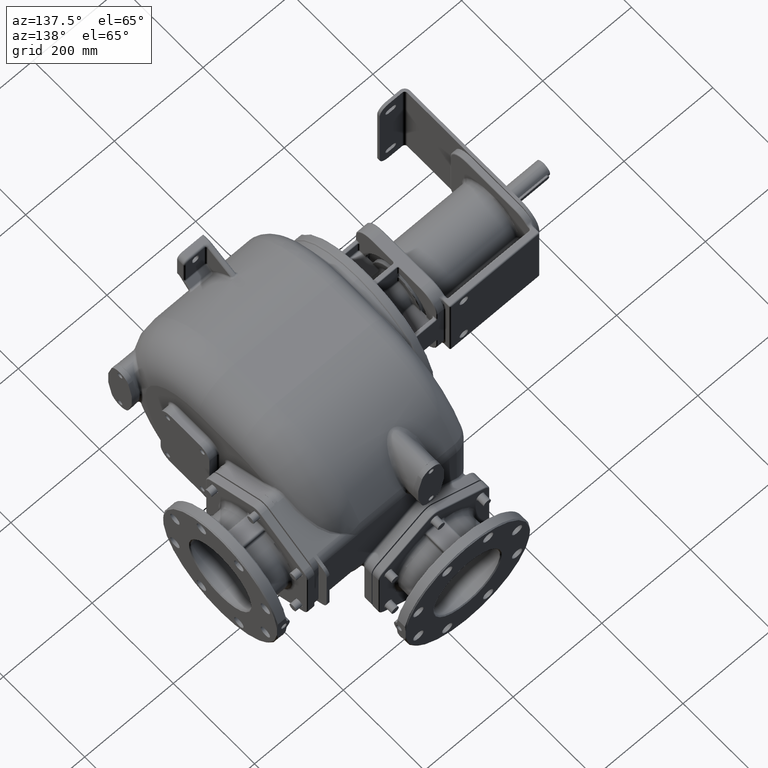
[diagram: clean part render]
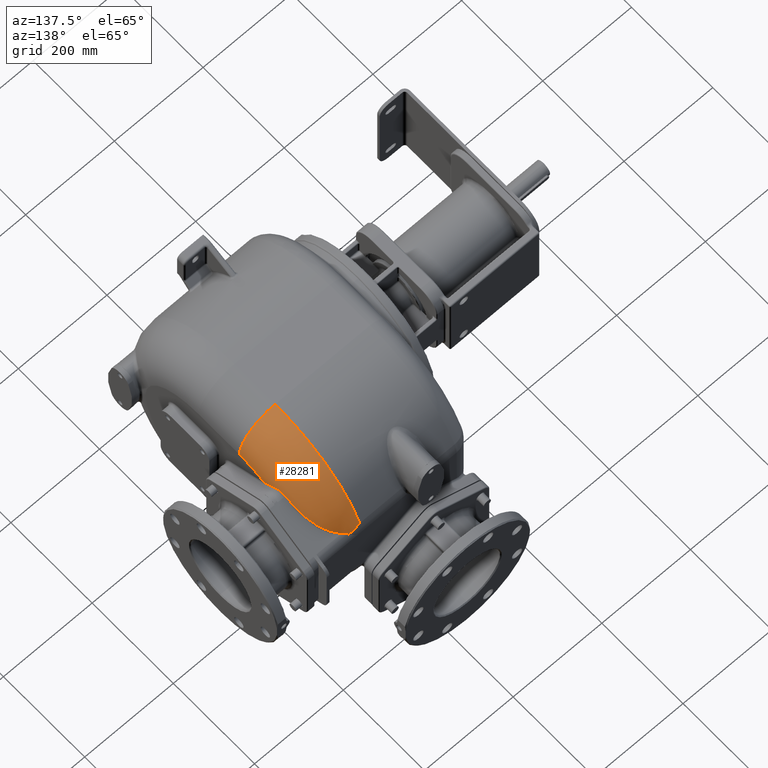
[diagram: same view with one face highlighted and labeled with its STEP entity id]
A machine part, auxiliary view. The second image highlights one B-rep face of the part: STEP entity #28281.
In plain terms, the highlighted toroidal blend (fillet) surface has major radius 144 mm and minor (blend) radius 81 mm.
Its self-contained STEP definition (entity closure, byte-faithful):
#2461=CARTESIAN_POINT('',(1.75E2,3.17E2,-2.6E1));
#2462=DIRECTION('',(1.E0,0.E0,0.E0));
#2463=DIRECTION('',(0.E0,4.233478865562E-1,9.059671997089E-1));
#2464=AXIS2_PLACEMENT_3D('',#2461,#2462,#2463);
#3040=CARTESIAN_POINT('',(1.733602443618E2,3.951095980304E2,1.138856239345E2));
#3041=CARTESIAN_POINT('',(1.734661831703E2,3.945748210790E2,1.135904168496E2));
#3042=CARTESIAN_POINT('',(1.736684373138E2,3.934981751461E2,1.129963078726E2));
#3043=CARTESIAN_POINT('',(1.739421932198E2,3.918631475769E2,1.120947629351E2));
#3044=CARTESIAN_POINT('',(1.741859853625E2,3.902069024249E2,1.111822324884E2));
#3045=CARTESIAN_POINT('',(1.743992934731E2,3.885289490650E2,1.102584862345E2));
#3046=CARTESIAN_POINT('',(1.745815907162E2,3.868285633995E2,1.093231680484E2));
#3047=CARTESIAN_POINT('',(1.747322930105E2,3.851050428096E2,1.083759320387E2));
#3048=CARTESIAN_POINT('',(1.748507681541E2,3.833577111877E2,1.074164505472E2));
#3049=CARTESIAN_POINT('',(1.749363377425E2,3.815858736748E2,1.064443904438E2));
#3050=CARTESIAN_POINT('',(1.749882841836E2,3.797890831383E2,1.054595521580E2));
#3051=CARTESIAN_POINT('',(1.749999999614E2,3.785738109838E2,1.047940818377E2));
#3052=CARTESIAN_POINT('',(1.75E2,3.779620956640E2,1.044592767582E2));
#3054=CARTESIAN_POINT('',(9.4E1,5.250322073841E2,5.971814680035E1));
#3055=CARTESIAN_POINT('',(9.451538624218E1,5.251048634583E2,5.954179212118E1));
#3056=CARTESIAN_POINT('',(9.554646692356E1,5.252401754354E2,5.918632790116E1));
#3057=CARTESIAN_POINT('',(9.709182938497E1,5.254147461811E2,5.864074179071E1));
#3058=CARTESIAN_POINT('',(9.863597298219E1,5.255599646151E2,5.808526365770E1));
#3059=CARTESIAN_POINT('',(1.001779446747E2,5.256759942519E2,5.751965589582E1));
#3060=CARTESIAN_POINT('',(1.017171040288E2,5.257627269187E2,5.694442303393E1));
#3061=CARTESIAN_POINT('',(1.032525532321E2,5.258201765968E2,5.635987863800E1));
#3062=CARTESIAN_POINT('',(1.047830884059E2,5.258481819746E2,5.576700859384E1));
#3063=CARTESIAN_POINT('',(1.063075976812E2,5.258466444557E2,5.516680749646E1));
#3064=CARTESIAN_POINT('',(1.078258321734E2,5.258155406206E2,5.455983848298E1));
#3065=CARTESIAN_POINT('',(1.093376667183E2,5.257546956298E2,5.394694761771E1));
#3066=CARTESIAN_POINT('',(1.108423900968E2,5.256645611190E2,5.332766935970E1));
#3067=CARTESIAN_POINT('',(1.123396533526E2,5.255450973468E2,5.270258337734E1));
#3068=CARTESIAN_POINT('',(1.138290756521E2,5.253964296493E2,5.207213301583E1));
#3069=CARTESIAN_POINT('',(1.148168093524E2,5.252773112861E2,5.164931850497E1));
#3070=CARTESIAN_POINT('',(1.153092020854E2,5.252130023591E2,5.143707029860E1));
#3072=CARTESIAN_POINT('',(1.153092020854E2,5.252130023591E2,5.143707029860E1));
#3073=CARTESIAN_POINT('',(1.155752783039E2,5.251784614331E2,5.132191762786E1));
#3074=CARTESIAN_POINT('',(1.161045555584E2,5.251119110537E2,5.107849512312E1));
#3075=CARTESIAN_POINT('',(1.169050818362E2,5.249989935738E2,5.071528949109E1));
#3076=CARTESIAN_POINT('',(1.174385900906E2,5.249224782409E2,5.046131345931E1));
#3077=CARTESIAN_POINT('',(1.177053320788E2,5.248829311947E2,5.033237396614E1));
#3079=CARTESIAN_POINT('',(1.177053320788E2,5.248829311947E2,5.033237396614E1));
#3080=CARTESIAN_POINT('',(1.178732428866E2,5.247701163780E2,5.049051828112E1));
#3081=CARTESIAN_POINT('',(1.182242647067E2,5.245340196570E2,5.081454391319E1));
#3082=CARTESIAN_POINT('',(1.188023792175E2,5.241517501924E2,5.131760275101E1));
#3083=CARTESIAN_POINT('',(1.194318696018E2,5.237376531075E2,5.183759997580E1));
#3084=CARTESIAN_POINT('',(1.201149873190E2,5.232904908056E2,5.237245649807E1));
#3085=CARTESIAN_POINT('',(1.208524276767E2,5.228083115169E2,5.292090300096E1));
#3086=CARTESIAN_POINT('',(1.216452966631E2,5.222885914027E2,5.348267916300E1));
#3087=CARTESIAN_POINT('',(1.224909363805E2,5.217318213825E2,5.405281802069E1));
#3088=CARTESIAN_POINT('',(1.233830614639E2,5.211405956276E2,5.462497541390E1));
#3089=CARTESIAN_POINT('',(1.243154492884E2,5.205171210455E2,5.519441922427E1));
#3090=CARTESIAN_POINT('',(1.252812730714E2,5.198642360895E2,5.575630071473E1));
#3091=CARTESIAN_POINT('',(1.262760303137E2,5.191835858426E2,5.630701805651E1));
#3092=CARTESIAN_POINT('',(1.272955026788E2,5.184764686424E2,5.684404852444E1));
#3093=CARTESIAN_POINT('',(1.283351678255E2,5.177445796058E2,5.736488305970E1));
#3094=CARTESIAN_POINT('',(1.293912278218E2,5.169895195831E2,5.786696777144E1));
#3095=CARTESIAN_POINT('',(1.301023125656E2,5.164727864102E2,5.818726775048E1));
#3096=CARTESIAN_POINT('',(1.304597870853E2,5.162107940024E2,5.834389739409E1));
#3098=CARTESIAN_POINT('',(1.304597870853E2,5.162107940024E2,5.834389739409E1));
#3099=CARTESIAN_POINT('',(1.308283016295E2,5.159407059331E2,5.850536894922E1));
#3100=CARTESIAN_POINT('',(1.315642150403E2,5.153897724783E2,5.883475393211E1));
#3101=CARTESIAN_POINT('',(1.326637954900E2,5.145308861720E2,5.934825887950E1));
#3102=CARTESIAN_POINT('',(1.337587047405E2,5.136388807813E2,5.988155997731E1));
#3103=CARTESIAN_POINT('',(1.348483507133E2,5.127132555355E2,6.043495360784E1));
#3104=CARTESIAN_POINT('',(1.359321136266E2,5.117535199364E2,6.100874713436E1));
#3105=CARTESIAN_POINT('',(1.370094035195E2,5.107591494175E2,6.160326181807E1));
#3106=CARTESIAN_POINT('',(1.380796102414E2,5.097296427202E2,6.221878651551E1));
#3107=CARTESIAN_POINT('',(1.391426003592E2,5.086639981555E2,6.285591373867E1));
#3108=CARTESIAN_POINT('',(1.401982303652E2,5.075611236736E2,6.351529078704E1));
#3109=CARTESIAN_POINT('',(1.412462426984E2,5.064199476161E2,6.419755747338E1));
#3110=CARTESIAN_POINT('',(1.422863009285E2,5.052393988300E2,6.490334896912E1));
#3111=CARTESIAN_POINT('',(1.433179951672E2,5.040184047299E2,6.563329778393E1));
#3112=CARTESIAN_POINT('',(1.443408054838E2,5.027559531410E2,6.638799922744E1));
#3113=CARTESIAN_POINT('',(1.453545749741E2,5.014504803340E2,6.716837743280E1));
#3114=CARTESIAN_POINT('',(1.463590748438E2,5.001003592636E2,6.797539851184E1));
#3115=CARTESIAN_POINT('',(1.473540490077E2,4.987037873631E2,6.881013399717E1));
#3116=CARTESIAN_POINT('',(1.483365131420E2,4.972628667686E2,6.967131182164E1));
#3117=CARTESIAN_POINT('',(1.493036864590E2,4.957799645637E2,7.055749649184E1));
#3118=CARTESIAN_POINT('',(1.502529668378E2,4.942577065835E2,7.146708821720E1));
#3119=CARTESIAN_POINT('',(1.511818290068E2,4.926991663502E2,7.239823707930E1));
#3120=CARTESIAN_POINT('',(1.520879641075E2,4.911076757198E2,7.334894545888E1));
#3121=CARTESIAN_POINT('',(1.529697986159E2,4.894859261166E2,7.431758236330E1));
#3122=CARTESIAN_POINT('',(1.538280086349E2,4.878326851423E2,7.530485235943E1));
#3123=CARTESIAN_POINT('',(1.546629663818E2,4.861470616171E2,7.631123954906E1));
#3124=CARTESIAN_POINT('',(1.554748857430E2,4.844283106935E2,7.733717451816E1));
#3125=CARTESIAN_POINT('',(1.562634478545E2,4.826767780292E2,7.838243176601E1));
#3126=CARTESIAN_POINT('',(1.570284330664E2,4.808927120722E2,7.944682582862E1));
#3127=CARTESIAN_POINT('',(1.577697196762E2,4.790762176633E2,8.053023700155E1));
#3128=CARTESIAN_POINT('',(1.584873114316E2,4.772271169805E2,8.163271969177E1));
#3129=CARTESIAN_POINT('',(1.591812087082E2,4.753452009967E2,8.275437783511E1));
#3130=CARTESIAN_POINT('',(1.598513818561E2,4.734303803088E2,8.389521738088E1));
#3131=CARTESIAN_POINT('',(1.604977402127E2,4.714828202634E2,8.505506870540E1));
#3132=CARTESIAN_POINT('',(1.611202399770E2,4.695026220335E2,8.623380760554E1));
#3133=CARTESIAN_POINT('',(1.617188549622E2,4.674898717983E2,8.743134486178E1));
#3134=CARTESIAN_POINT('',(1.622935845406E2,4.654446932035E2,8.864753899424E1));
#3135=CARTESIAN_POINT('',(1.628444703469E2,4.633671804494E2,8.988224069540E1));
#3136=CARTESIAN_POINT('',(1.633715407120E2,4.612575112062E2,9.113528902173E1));
#3137=CARTESIAN_POINT('',(1.638748267371E2,4.591159958229E2,9.240643035445E1));
#3138=CARTESIAN_POINT('',(1.643544169358E2,4.569428933714E2,9.369540500654E1));
#3139=CARTESIAN_POINT('',(1.648103982405E2,4.547385455524E2,9.500193422612E1));
#3140=CARTESIAN_POINT('',(1.652428616013E2,4.525034276136E2,9.632566407635E1));
#3141=CARTESIAN_POINT('',(1.656519607571E2,4.502379294158E2,9.766624952839E1));
#3142=CARTESIAN_POINT('',(1.660378325322E2,4.479426663226E2,9.902322181088E1));
#3143=CARTESIAN_POINT('',(1.664006006541E2,4.456184746860E2,1.003960178415E2));
#3144=CARTESIAN_POINT('',(1.667404520389E2,4.432660929188E2,1.017840958972E2));
#3145=CARTESIAN_POINT('',(1.670575861691E2,4.408864462363E2,1.031867699467E2));
#3146=CARTESIAN_POINT('',(1.673521977991E2,4.384805423841E2,1.046033736834E2));
#3147=CARTESIAN_POINT('',(1.676245209994E2,4.360492764943E2,1.060332944390E2));
#3148=CARTESIAN_POINT('',(1.678747738084E2,4.335939467282E2,1.074756478331E2));
#3149=CARTESIAN_POINT('',(1.681031900672E2,4.311159727285E2,1.089294596846E2));
#3150=CARTESIAN_POINT('',(1.683099850036E2,4.286168274508E2,1.103938208181E2));
#3151=CARTESIAN_POINT('',(1.684954132525E2,4.260976355291E2,1.118679917646E2));
#3152=CARTESIAN_POINT('',(1.686049109876E2,4.244063694867E2,1.128563286E2));
#3153=CARTESIAN_POINT('',(1.686562078377E2,4.235573989122E2,1.133520893372E2));
#3155=CARTESIAN_POINT('',(1.686562078377E2,4.235573989122E2,1.133520893372E2));
#3156=CARTESIAN_POINT('',(1.686693154460E2,4.233404954678E2,1.134787426270E2));
#3157=CARTESIAN_POINT('',(1.686977436262E2,4.229031694896E2,1.137266584392E2));
#3158=CARTESIAN_POINT('',(1.687469383326E2,4.222366573934E2,1.140823387935E2));
#3159=CARTESIAN_POINT('',(1.688025731416E2,4.215602514598E2,1.144214513580E2));
#3160=CARTESIAN_POINT('',(1.688645379702E2,4.208744179909E2,1.147437023769E2));
#3161=CARTESIAN_POINT('',(1.689327175452E2,4.201796649217E2,1.150487612707E2));
#3162=CARTESIAN_POINT('',(1.690069938511E2,4.194764900510E2,1.153362884864E2));
#3163=CARTESIAN_POINT('',(1.690872435267E2,4.187653931923E2,1.156059350608E2));
#3164=CARTESIAN_POINT('',(1.691733448638E2,4.180468897177E2,1.158573108856E2));
#3165=CARTESIAN_POINT('',(1.692651287887E2,4.173214285010E2,1.160901936205E2));
#3166=CARTESIAN_POINT('',(1.693624394646E2,4.165892052208E2,1.163044726088E2));
#3167=CARTESIAN_POINT('',(1.694651209764E2,4.158504410013E2,1.164999868094E2));
#3168=CARTESIAN_POINT('',(1.695730187600E2,4.151053309245E2,1.166765563340E2));
#3169=CARTESIAN_POINT('',(1.696859644073E2,4.143541570292E2,1.168339491256E2));
#3170=CARTESIAN_POINT('',(1.698036966247E2,4.135977798971E2,1.169718067866E2));
#3171=CARTESIAN_POINT('',(1.699259353602E2,4.128370152923E2,1.170898536444E2));
#3172=CARTESIAN_POINT('',(1.700523710297E2,4.120727129082E2,1.171878800160E2));
#3173=CARTESIAN_POINT('',(1.701826924111E2,4.113056752034E2,1.172657116886E2));
#3174=CARTESIAN_POINT('',(1.703166145711E2,4.105364976196E2,1.173232190056E2));
#3175=CARTESIAN_POINT('',(1.704538417973E2,4.097658083105E2,1.173602766246E2));
#3176=CARTESIAN_POINT('',(1.705940746787E2,4.089942245597E2,1.173767711685E2));
#3177=CARTESIAN_POINT('',(1.707369933651E2,4.082223679381E2,1.173726503744E2));
#3178=CARTESIAN_POINT('',(1.708822570787E2,4.074509459473E2,1.173478800392E2));
#3179=CARTESIAN_POINT('',(1.710295216139E2,4.066806564864E2,1.173024499170E2));
#3180=CARTESIAN_POINT('',(1.711784410195E2,4.059121880827E2,1.172363692720E2));
#3181=CARTESIAN_POINT('',(1.713286560325E2,4.051462749580E2,1.171496780911E2));
#3182=CARTESIAN_POINT('',(1.714797783739E2,4.043837456929E2,1.170424869828E2));
#3183=CARTESIAN_POINT('',(1.716314239831E2,4.036254020877E2,1.169149374800E2));
#3184=CARTESIAN_POINT('',(1.717832076544E2,4.028720472830E2,1.167672084737E2));
#3185=CARTESIAN_POINT('',(1.719347530481E2,4.021244465919E2,1.165995050923E2));
#3186=CARTESIAN_POINT('',(1.720856965580E2,4.013832992488E2,1.164120596100E2));
#3187=CARTESIAN_POINT('',(1.722356797143E2,4.006492831167E2,1.162051363514E2));
#3188=CARTESIAN_POINT('',(1.723843496937E2,3.999230675560E2,1.159790260373E2));
#3189=CARTESIAN_POINT('',(1.725313673088E2,3.992052737340E2,1.157340371778E2));
#3190=CARTESIAN_POINT('',(1.726764120667E2,3.984964651942E2,1.154704751682E2));
#3191=CARTESIAN_POINT('',(1.728191555896E2,3.977972274320E2,1.151887209698E2));
#3192=CARTESIAN_POINT('',(1.729592743315E2,3.971081472090E2,1.148891963737E2));
#3193=CARTESIAN_POINT('',(1.730964576373E2,3.964298120905E2,1.145723331380E2));
#3194=CARTESIAN_POINT('',(1.732304239078E2,3.957627230460E2,1.142385323422E2));
#3195=CARTESIAN_POINT('',(1.733173751177E2,3.953260030725E2,1.140050795331E2));
#3196=CARTESIAN_POINT('',(1.733602443618E2,3.951095980304E2,1.138856239345E2));
#3324=CARTESIAN_POINT('',(9.4E1,3.17E2,1.18E2));
#3325=DIRECTION('',(0.E0,-1.E0,0.E0));
#3326=DIRECTION('',(1.E0,0.E0,0.E0));
#3327=AXIS2_PLACEMENT_3D('',#3324,#3325,#3326);
#6106=CARTESIAN_POINT('',(9.4E1,3.17E2,-2.6E1));
#6107=DIRECTION('',(1.E0,0.E0,0.E0));
#6108=DIRECTION('',(0.E0,9.245875883739E-1,3.809695413349E-1));
#6109=AXIS2_PLACEMENT_3D('',#6106,#6107,#6108);
#21628=CARTESIAN_POINT('',(9.4E1,3.169999999999E2,1.99E2));
#21630=VERTEX_POINT('',#21628);
#21739=CARTESIAN_POINT('',(1.75E2,3.17E2,1.18E2));
#21740=VERTEX_POINT('',#21739);
#21786=CARTESIAN_POINT('',(9.4E1,5.250322073841E2,5.971814680035E1));
#21787=VERTEX_POINT('',#21786);
#22212=CARTESIAN_POINT('',(1.75E2,3.779620956640E2,1.044592767582E2));
#22213=VERTEX_POINT('',#22212);
#22216=VERTEX_POINT('',#3040);
#22218=VERTEX_POINT('',#3155);
#22220=VERTEX_POINT('',#3098);
#22222=VERTEX_POINT('',#3079);
#22301=VERTEX_POINT('',#3070);
#28258=CARTESIAN_POINT('',(9.4E1,3.17E2,-2.6E1));
#28259=DIRECTION('',(-1.E0,0.E0,0.E0));
#28260=DIRECTION('',(0.E0,9.274130518928E-1,3.740388097229E-1));
#28261=AXIS2_PLACEMENT_3D('',#28258,#28259,#28260);
#28262=TOROIDAL_SURFACE('',#28261,1.44E2,8.1E1);
#28264=ORIENTED_EDGE('',*,*,#28263,.T.);
#28265=ORIENTED_EDGE('',*,*,#27795,.T.);
#28267=ORIENTED_EDGE('',*,*,#28266,.T.);
#28269=ORIENTED_EDGE('',*,*,#28268,.F.);
#28271=ORIENTED_EDGE('',*,*,#28270,.T.);
#28273=ORIENTED_EDGE('',*,*,#28272,.T.);
#28274=ORIENTED_EDGE('',*,*,#28248,.T.);
#28276=ORIENTED_EDGE('',*,*,#28275,.T.);
#28278=ORIENTED_EDGE('',*,*,#28277,.T.);
#28279=EDGE_LOOP('',(#28264,#28265,#28267,#28269,#28271,#28273,#28274,#28276,
#28278));
#28280=FACE_OUTER_BOUND('',#28279,.F.);
#28281=ADVANCED_FACE('',(#28280),#28262,.T.);
#2465=CIRCLE('',#2464,1.44E2);
#3053=B_SPLINE_CURVE_WITH_KNOTS('',3,(#3040,#3041,#3042,#3043,#3044,#3045,#3046,
#3047,#3048,#3049,#3050,#3051,#3052),.UNSPECIFIED.,.F.,.F.,(4,1,1,1,1,1,1,1,1,1,
4),(0.E0,1.E-1,2.E-1,3.E-1,4.E-1,5.E-1,6.E-1,7.E-1,8.E-1,9.E-1,1.E0),
.UNSPECIFIED.);
#3071=B_SPLINE_CURVE_WITH_KNOTS('',3,(#3054,#3055,#3056,#3057,#3058,#3059,#3060,
#3061,#3062,#3063,#3064,#3065,#3066,#3067,#3068,#3069,#3070),.UNSPECIFIED.,.F.,
.F.,(4,1,1,1,1,1,1,1,1,1,1,1,1,1,4),(0.E0,7.142857142857E-2,1.428571428571E-1,
2.142857142857E-1,2.857142857143E-1,3.571428571429E-1,4.285714285714E-1,5.E-1,
5.714285714286E-1,6.428571428571E-1,7.142857142857E-1,7.857142857143E-1,
8.571428571429E-1,9.285714285714E-1,1.E0),.UNSPECIFIED.);
#3078=B_SPLINE_CURVE_WITH_KNOTS('',3,(#3072,#3073,#3074,#3075,#3076,#3077),
.UNSPECIFIED.,.F.,.F.,(4,1,1,4),(0.E0,3.333333333333E-1,6.666666666667E-1,1.E0),
.UNSPECIFIED.);
#3097=B_SPLINE_CURVE_WITH_KNOTS('',3,(#3079,#3080,#3081,#3082,#3083,#3084,#3085,
#3086,#3087,#3088,#3089,#3090,#3091,#3092,#3093,#3094,#3095,#3096),
.UNSPECIFIED.,.F.,.F.,(4,1,1,1,1,1,1,1,1,1,1,1,1,1,1,4),(0.E0,6.666666666667E-2,
1.333333333333E-1,2.E-1,2.666666666667E-1,3.333333333333E-1,4.E-1,
4.666666666667E-1,5.333333333333E-1,6.E-1,6.666666666667E-1,7.333333333333E-1,
8.E-1,8.666666666667E-1,9.333333333333E-1,1.E0),.UNSPECIFIED.);
#3154=B_SPLINE_CURVE_WITH_KNOTS('',3,(#3098,#3099,#3100,#3101,#3102,#3103,#3104,
#3105,#3106,#3107,#3108,#3109,#3110,#3111,#3112,#3113,#3114,#3115,#3116,#3117,
#3118,#3119,#3120,#3121,#3122,#3123,#3124,#3125,#3126,#3127,#3128,#3129,#3130,
#3131,#3132,#3133,#3134,#3135,#3136,#3137,#3138,#3139,#3140,#3141,#3142,#3143,
#3144,#3145,#3146,#3147,#3148,#3149,#3150,#3151,#3152,#3153),.UNSPECIFIED.,.F.,
.F.,(4,1,1,1,1,1,1,1,1,1,1,1,1,1,1,1,1,1,1,1,1,1,1,1,1,1,1,1,1,1,1,1,1,1,1,1,1,
1,1,1,1,1,1,1,1,1,1,1,1,1,1,1,1,4),(0.E0,1.886792452830E-2,3.773584905660E-2,
5.660377358491E-2,7.547169811321E-2,9.433962264151E-2,1.132075471698E-1,
1.320754716981E-1,1.509433962264E-1,1.698113207547E-1,1.886792452830E-1,
2.075471698113E-1,2.264150943396E-1,2.452830188679E-1,2.641509433962E-1,
2.830188679245E-1,3.018867924528E-1,3.207547169811E-1,3.396226415094E-1,
3.584905660377E-1,3.773584905660E-1,3.962264150943E-1,4.150943396226E-1,
4.339622641509E-1,4.528301886792E-1,4.716981132075E-1,4.905660377358E-1,
5.094339622642E-1,5.283018867925E-1,5.471698113208E-1,5.660377358491E-1,
5.849056603774E-1,6.037735849057E-1,6.226415094340E-1,6.415094339623E-1,
6.603773584906E-1,6.792452830189E-1,6.981132075472E-1,7.169811320755E-1,
7.358490566038E-1,7.547169811321E-1,7.735849056604E-1,7.924528301887E-1,
8.113207547170E-1,8.301886792453E-1,8.490566037736E-1,8.679245283019E-1,
8.867924528302E-1,9.056603773585E-1,9.245283018868E-1,9.433962264151E-1,
9.622641509434E-1,9.811320754717E-1,1.E0),.UNSPECIFIED.);
#3197=B_SPLINE_CURVE_WITH_KNOTS('',3,(#3155,#3156,#3157,#3158,#3159,#3160,#3161,
#3162,#3163,#3164,#3165,#3166,#3167,#3168,#3169,#3170,#3171,#3172,#3173,#3174,
#3175,#3176,#3177,#3178,#3179,#3180,#3181,#3182,#3183,#3184,#3185,#3186,#3187,
#3188,#3189,#3190,#3191,#3192,#3193,#3194,#3195,#3196),.UNSPECIFIED.,.F.,.F.,(4,
1,1,1,1,1,1,1,1,1,1,1,1,1,1,1,1,1,1,1,1,1,1,1,1,1,1,1,1,1,1,1,1,1,1,1,1,1,1,4),(
0.E0,2.564102564103E-2,5.128205128205E-2,7.692307692308E-2,1.025641025641E-1,
1.282051282051E-1,1.538461538462E-1,1.794871794872E-1,2.051282051282E-1,
2.307692307692E-1,2.564102564103E-1,2.820512820513E-1,3.076923076923E-1,
3.333333333333E-1,3.589743589744E-1,3.846153846154E-1,4.102564102564E-1,
4.358974358974E-1,4.615384615385E-1,4.871794871795E-1,5.128205128205E-1,
5.384615384615E-1,5.641025641026E-1,5.897435897436E-1,6.153846153846E-1,
6.410256410256E-1,6.666666666667E-1,6.923076923077E-1,7.179487179487E-1,
7.435897435897E-1,7.692307692308E-1,7.948717948718E-1,8.205128205128E-1,
8.461538461538E-1,8.717948717949E-1,8.974358974359E-1,9.230769230769E-1,
9.487179487179E-1,9.743589743590E-1,1.E0),.UNSPECIFIED.);
#3328=CIRCLE('',#3327,8.1E1);
#6110=CIRCLE('',#6109,2.25E2);
#27795=EDGE_CURVE('',#22213,#21740,#2465,.T.);
#28248=EDGE_CURVE('',#22222,#22220,#3097,.T.);
#28263=EDGE_CURVE('',#22216,#22213,#3053,.T.);
#28266=EDGE_CURVE('',#21740,#21630,#3328,.T.);
#28268=EDGE_CURVE('',#21787,#21630,#6110,.T.);
#28270=EDGE_CURVE('',#21787,#22301,#3071,.T.);
#28272=EDGE_CURVE('',#22301,#22222,#3078,.T.);
#28275=EDGE_CURVE('',#22220,#22218,#3154,.T.);
#28277=EDGE_CURVE('',#22218,#22216,#3197,.T.);